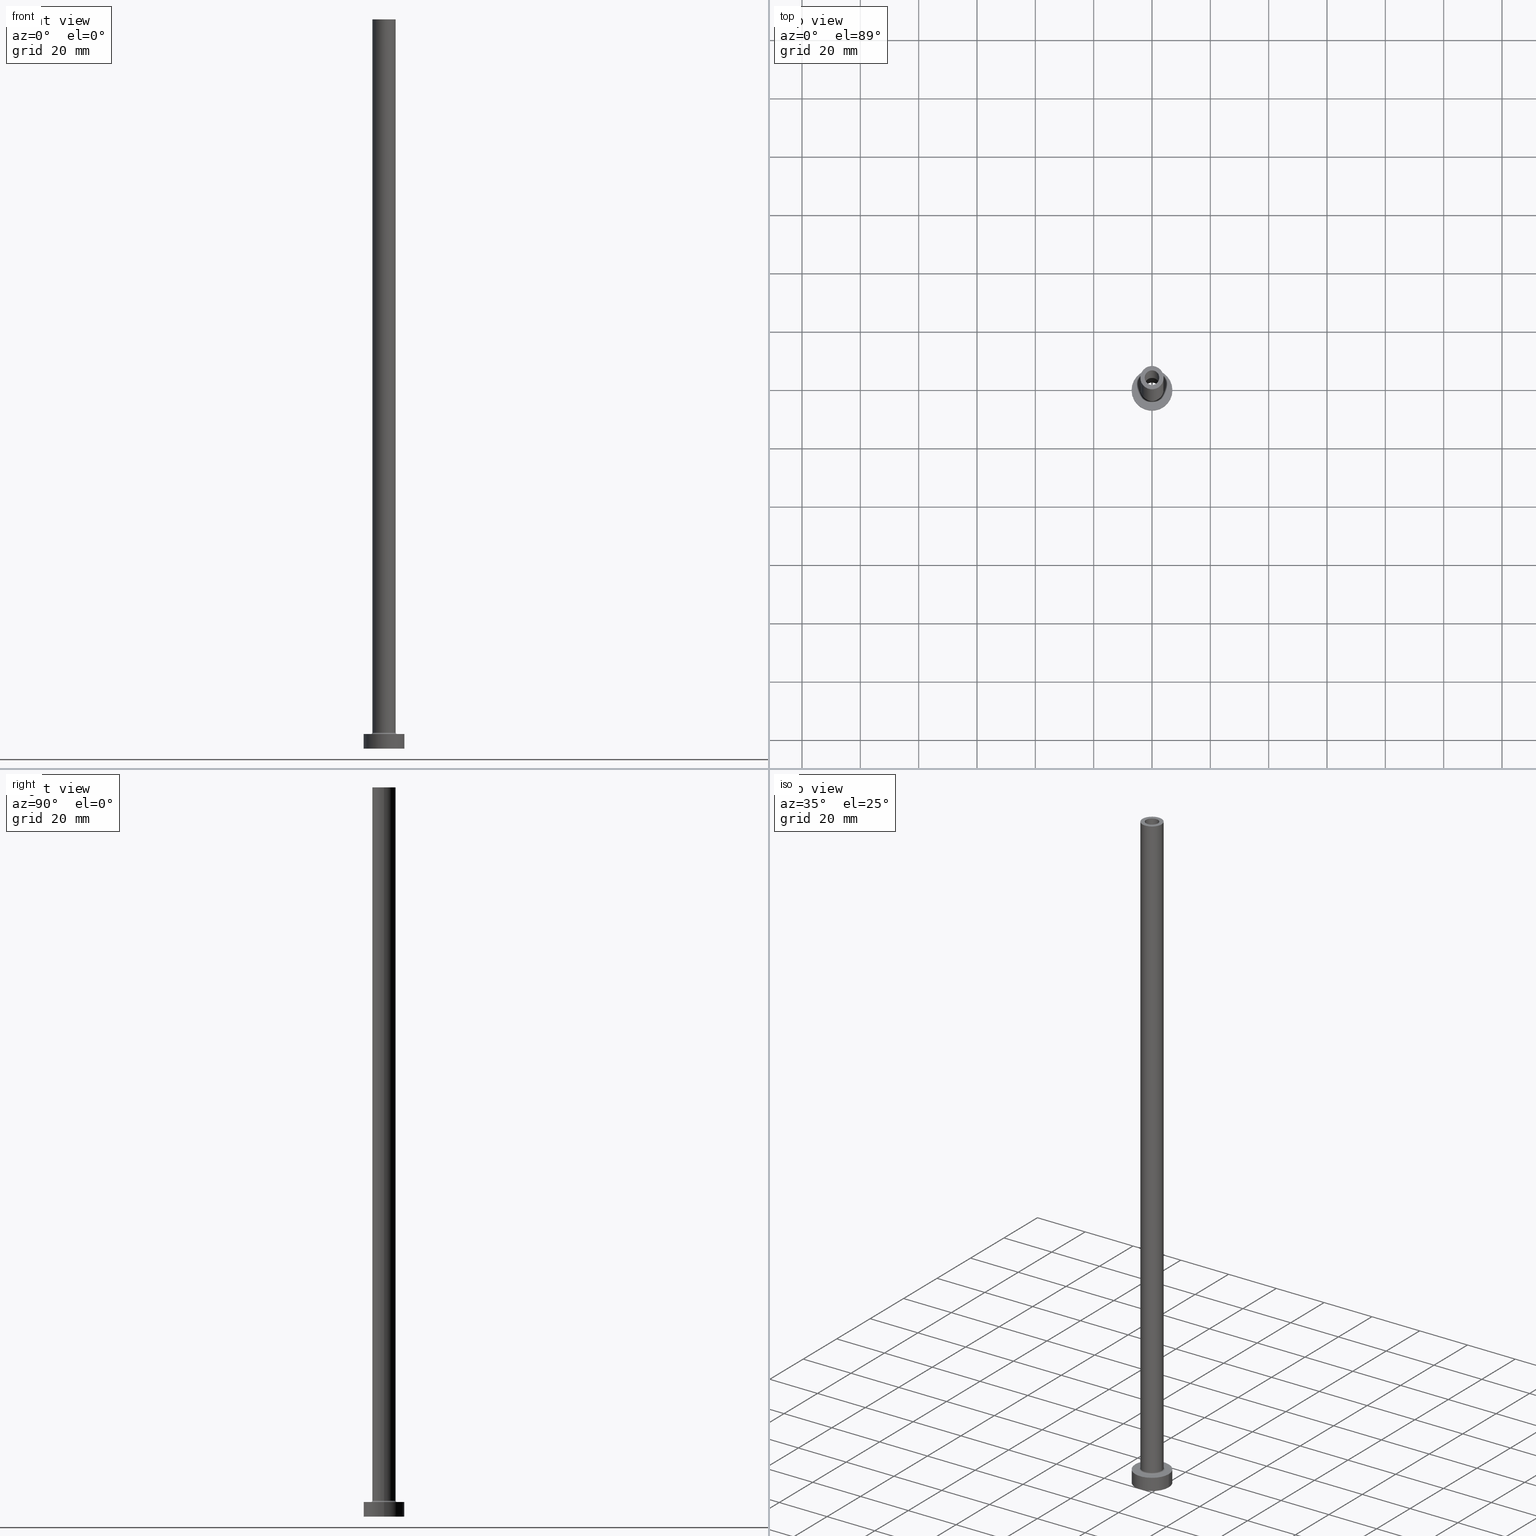
[diagram: canonical four-view strip — front | top / right | iso, engineering-drawing reading convention]
A machine part, canonical four-view strip (front | top / right | iso — engineering-drawing reading convention). The complete STEP part file that produces these views, byte-faithful:
ISO-10303-21;
HEADER;
FILE_DESCRIPTION (( 'STEP AP203' ),
    '1' );
FILE_NAME ('c5e4.STEP',
    '2023-02-13T10:12:48',
    ( '' ),
    ( '' ),
    'SwSTEP 2.0',
    'SolidWorks 2019',
    '' );
FILE_SCHEMA (( 'CONFIG_CONTROL_DESIGN' ));
ENDSEC;

DATA;
#1 = EDGE_LOOP ( 'NONE', ( #268, #424 ) ) ;
#2 = ADVANCED_FACE ( 'NONE', ( #149 ), #365, .F. ) ;
#3 = CYLINDRICAL_SURFACE ( 'NONE', #176, 2.649999999999999911 ) ;
#4 = VERTEX_POINT ( 'NONE', #191 ) ;
#5 = PRODUCT ( 'c5e4', 'c5e4', '', ( #448 ) ) ;
#6 = FACE_BOUND ( 'NONE', #1, .T. ) ;
#7 = VERTEX_POINT ( 'NONE', #298 ) ;
#8 = DIRECTION ( 'NONE',  ( -0.000000000000000000, -0.000000000000000000, -1.000000000000000000 ) ) ;
#9 = AXIS2_PLACEMENT_3D ( 'NONE', #356, #360, #143 ) ;
#10 = FACE_OUTER_BOUND ( 'NONE', #62, .T. ) ;
#11 = ADVANCED_FACE ( 'NONE', ( #431 ), #118, .T. ) ;
#12 = CARTESIAN_POINT ( 'NONE',  ( 0.000000000000000000, 0.000000000000000000, 5.000000000000000000 ) ) ;
#13 = FACE_OUTER_BOUND ( 'NONE', #59, .T. ) ;
#14 = CARTESIAN_POINT ( 'NONE',  ( 0.000000000000000000, 0.000000000000000000, 0.000000000000000000 ) ) ;
#15 = FACE_OUTER_BOUND ( 'NONE', #271, .T. ) ;
#16 = PERSON_AND_ORGANIZATION ( #60, #262 ) ;
#17 = AXIS2_PLACEMENT_3D ( 'NONE', #50, #41, #93 ) ;
#18 = DATE_AND_TIME ( #54, #83 ) ;
#19 = APPROVAL_STATUS ( 'not_yet_approved' ) ;
#20 = LINE ( 'NONE', #212, #416 ) ;
#21 = ORIENTED_EDGE ( 'NONE', *, *, #167, .F. ) ;
#22 = CIRCLE ( 'NONE', #206, 2.500000000000000000 ) ;
#23 = EDGE_CURVE ( 'NONE', #26, #336, #228, .T. ) ;
#24 = EDGE_LOOP ( 'NONE', ( #42, #290 ) ) ;
#25 = ORIENTED_EDGE ( 'NONE', *, *, #227, .T. ) ;
#26 = VERTEX_POINT ( 'NONE', #273 ) ;
#27 = COORDINATED_UNIVERSAL_TIME_OFFSET ( 1, 0, .AHEAD. ) ;
#28 = ADVANCED_FACE ( 'NONE', ( #13 ), #135, .F. ) ;
#29 = DIRECTION ( 'NONE',  ( 1.000000000000000000, 0.000000000000000000, 0.000000000000000000 ) ) ;
#30 = ORIENTED_EDGE ( 'NONE', *, *, #454, .F. ) ;
#31 = DESIGN_CONTEXT ( 'detailed design', #440, 'design' ) ;
#32 = DIRECTION ( 'NONE',  ( -0.000000000000000000, -0.000000000000000000, -1.000000000000000000 ) ) ;
#33 = CC_DESIGN_DATE_AND_TIME_ASSIGNMENT ( #18, #170, ( #139 ) ) ;
#34 = VERTEX_POINT ( 'NONE', #340 ) ;
#35 = CYLINDRICAL_SURFACE ( 'NONE', #164, 2.500000000000000000 ) ;
#36 = DIRECTION ( 'NONE',  ( 0.000000000000000000, 0.000000000000000000, -1.000000000000000000 ) ) ;
#37 = CIRCLE ( 'NONE', #423, 0.5000000000000004441 ) ;
#38 = CARTESIAN_POINT ( 'NONE',  ( -4.000000000000000000, 0.000000000000000000, 250.0000000000000000 ) ) ;
#39 = CARTESIAN_POINT ( 'NONE',  ( 0.000000000000000000, 0.000000000000000000, 5.000000000000000000 ) ) ;
#40 = CARTESIAN_POINT ( 'NONE',  ( 0.000000000000000000, 0.000000000000000000, 250.0000000000000000 ) ) ;
#41 = DIRECTION ( 'NONE',  ( -0.000000000000000000, -0.000000000000000000, -1.000000000000000000 ) ) ;
#42 = ORIENTED_EDGE ( 'NONE', *, *, #429, .T. ) ;
#43 = PRODUCT_DEFINITION_SHAPE ( 'NONE', 'NONE',  #139 ) ;
#44 = CARTESIAN_POINT ( 'NONE',  ( -2.649999999999999911, 0.000000000000000000, 212.4953318805773961 ) ) ;
#45 = CC_DESIGN_APPROVAL ( #409, ( #139 ) ) ;
#46 = CARTESIAN_POINT ( 'NONE',  ( -2.500000000000000000, 0.000000000000000000, 205.0000000000000284 ) ) ;
#47 = CIRCLE ( 'NONE', #330, 4.500000000000000888 ) ;
#48 = DIRECTION ( 'NONE',  ( 0.000000000000000000, 0.000000000000000000, 1.000000000000000000 ) ) ;
#49 = CLOSED_SHELL ( 'NONE', ( #441, #288, #28, #296, #11, #95, #246, #67, #157, #387, #154, #2, #327, #108 ) ) ;
#50 = CARTESIAN_POINT ( 'NONE',  ( 0.000000000000000000, 0.000000000000000000, 5.000000000000000000 ) ) ;
#51 = PERSON_AND_ORGANIZATION_ROLE ( 'design_supplier' ) ;
#52 = DIRECTION ( 'NONE',  ( 0.000000000000000000, -1.000000000000000000, 0.000000000000000000 ) ) ;
#53 = CC_DESIGN_PERSON_AND_ORGANIZATION_ASSIGNMENT ( #408, #379, ( #139 ) ) ;
#54 = CALENDAR_DATE ( 2023, 13, 2 ) ;
#55 = AXIS2_PLACEMENT_3D ( 'NONE', #294, #326, #76 ) ;
#56 = DIRECTION ( 'NONE',  ( 1.000000000000000000, 0.000000000000000000, 0.000000000000000000 ) ) ;
#57 = APPROVAL_STATUS ( 'not_yet_approved' ) ;
#58 = DIRECTION ( 'NONE',  ( 0.000000000000000000, 0.000000000000000000, 1.000000000000000000 ) ) ;
#59 = EDGE_LOOP ( 'NONE', ( #216, #189, #355, #256 ) ) ;
#60 = PERSON ( 'NEUR�EN�', 'NEUR�EN�', 'NEUR�EN�', ('NEUR�EN�'), ('NEUR�EN�'), ('NEUR�EN�') ) ;
#61 = APPLICATION_PROTOCOL_DEFINITION ( 'international standard', 'config_control_design', 1994, #440 ) ;
#62 = EDGE_LOOP ( 'NONE', ( #269, #102 ) ) ;
#63 = LOCAL_TIME ( 11, 12, 48.00000000000000000, #128 ) ;
#64 = AXIS2_PLACEMENT_3D ( 'NONE', #182, #396, #248 ) ;
#65 = VERTEX_POINT ( 'NONE', #304 ) ;
#66 = VERTEX_POINT ( 'NONE', #204 ) ;
#67 = ADVANCED_FACE ( 'NONE', ( #165, #10 ), #240, .F. ) ;
#68 = DATE_TIME_ROLE ( 'classification_date' ) ;
#69 = DIRECTION ( 'NONE',  ( 0.000000000000000000, 0.000000000000000000, 1.000000000000000000 ) ) ;
#70 = VERTEX_POINT ( 'NONE', #160 ) ;
#71 = CC_DESIGN_PERSON_AND_ORGANIZATION_ASSIGNMENT ( #385, #351, ( #270 ) ) ;
#72 = CARTESIAN_POINT ( 'NONE',  ( 2.500000000000000000, 3.061616997868382648E-16, 250.0000000000000000 ) ) ;
#73 = LOCAL_TIME ( 11, 12, 48.00000000000000000, #94 ) ;
#74 = CIRCLE ( 'NONE', #55, 7.000000000000000000 ) ;
#75 = ORIENTED_EDGE ( 'NONE', *, *, #101, .T. ) ;
#76 = DIRECTION ( 'NONE',  ( 1.000000000000000000, 0.000000000000000000, 0.000000000000000000 ) ) ;
#77 = ORIENTED_EDGE ( 'NONE', *, *, #23, .T. ) ;
#78 = DIRECTION ( 'NONE',  ( 0.000000000000000000, 0.000000000000000000, 1.000000000000000000 ) ) ;
#79 = EDGE_CURVE ( 'NONE', #70, #109, #439, .T. ) ;
#80 = ORIENTED_EDGE ( 'NONE', *, *, #210, .T. ) ;
#81 = ORIENTED_EDGE ( 'NONE', *, *, #421, .T. ) ;
#82 = CARTESIAN_POINT ( 'NONE',  ( 0.000000000000000000, 0.000000000000000000, 212.4953318805773961 ) ) ;
#83 = LOCAL_TIME ( 11, 12, 48.00000000000000000, #382 ) ;
#84 = CIRCLE ( 'NONE', #317, 2.649999999999999911 ) ;
#85 = SECURITY_CLASSIFICATION ( '', '', #344 ) ;
#86 = CYLINDRICAL_SURFACE ( 'NONE', #402, 4.000000000000000000 ) ;
#87 = VERTEX_POINT ( 'NONE', #276 ) ;
#88 = DIRECTION ( 'NONE',  ( 0.000000000000000000, 0.000000000000000000, 1.000000000000000000 ) ) ;
#89 = DIRECTION ( 'NONE',  ( 0.000000000000000000, 0.000000000000000000, 1.000000000000000000 ) ) ;
#90 = DIRECTION ( 'NONE',  ( 1.000000000000000000, 0.000000000000000000, 0.000000000000000000 ) ) ;
#91 = APPROVAL_PERSON_ORGANIZATION ( #16, #409, #444 ) ;
#92 = CIRCLE ( 'NONE', #158, 4.500000000000000888 ) ;
#93 = DIRECTION ( 'NONE',  ( -1.000000000000000000, 0.000000000000000000, 0.000000000000000000 ) ) ;
#94 = COORDINATED_UNIVERSAL_TIME_OFFSET ( 1, 0, .AHEAD. ) ;
#95 = ADVANCED_FACE ( 'NONE', ( #15 ), #410, .T. ) ;
#96 = CARTESIAN_POINT ( 'NONE',  ( 4.000000000000000000, 4.898587196589412829E-16, 250.0000000000000000 ) ) ;
#97 = VECTOR ( 'NONE', #155, 1000.000000000000000 ) ;
#98 = CARTESIAN_POINT ( 'NONE',  ( 0.000000000000000000, 0.000000000000000000, 5.500000000000005329 ) ) ;
#99 = EDGE_LOOP ( 'NONE', ( #300, #225 ) ) ;
#100 = DIRECTION ( 'NONE',  ( -1.000000000000000000, 1.224646799147351482E-16, 0.000000000000000000 ) ) ;
#101 = EDGE_CURVE ( 'NONE', #231, #386, #140, .T. ) ;
#102 = ORIENTED_EDGE ( 'NONE', *, *, #388, .F. ) ;
#103 = DATE_AND_TIME ( #138, #401 ) ;
#104 = CIRCLE ( 'NONE', #64, 7.000000000000000000 ) ;
#105 = VERTEX_POINT ( 'NONE', #96 ) ;
#106 = CARTESIAN_POINT ( 'NONE',  ( 0.000000000000000000, 0.000000000000000000, 205.0000000000000284 ) ) ;
#107 = AXIS2_PLACEMENT_3D ( 'NONE', #39, #333, #403 ) ;
#108 = ADVANCED_FACE ( 'NONE', ( #307 ), #446, .F. ) ;
#109 = VERTEX_POINT ( 'NONE', #219 ) ;
#110 = ADVANCED_BREP_SHAPE_REPRESENTATION ( 'c5e4', ( #112, #393 ), #282 ) ;
#111 = DIRECTION ( 'NONE',  ( -0.000000000000000000, -0.000000000000000000, -1.000000000000000000 ) ) ;
#112 = MANIFOLD_SOLID_BREP ( 'Odebrat vysunut�m4', #49 ) ;
#113 = FACE_OUTER_BOUND ( 'NONE', #251, .T. ) ;
#114 = CIRCLE ( 'NONE', #458, 4.000000000000000000 ) ;
#115 = EDGE_CURVE ( 'NONE', #260, #34, #20, .T. ) ;
#116 = DIRECTION ( 'NONE',  ( 1.000000000000000000, 0.000000000000000000, 0.000000000000000000 ) ) ;
#117 = DIRECTION ( 'NONE',  ( -0.000000000000000000, -0.000000000000000000, -1.000000000000000000 ) ) ;
#118 = CYLINDRICAL_SURFACE ( 'NONE', #107, 7.000000000000000000 ) ;
#119 = FACE_BOUND ( 'NONE', #141, .T. ) ;
#120 = CC_DESIGN_APPROVAL ( #433, ( #270 ) ) ;
#121 = CIRCLE ( 'NONE', #199, 7.000000000000000000 ) ;
#122 = DIRECTION ( 'NONE',  ( 1.000000000000000000, 0.000000000000000000, -0.000000000000000000 ) ) ;
#123 = CARTESIAN_POINT ( 'NONE',  ( 0.000000000000000000, 0.000000000000000000, 250.0000000000000000 ) ) ;
#124 = DIRECTION ( 'NONE',  ( 1.000000000000000000, 0.000000000000000000, -0.000000000000000000 ) ) ;
#125 = LINE ( 'NONE', #442, #255 ) ;
#126 = AXIS2_PLACEMENT_3D ( 'NONE', #263, #226, #383 ) ;
#127 = CARTESIAN_POINT ( 'NONE',  ( 0.000000000000000000, 0.000000000000000000, 250.0000000000000000 ) ) ;
#128 = COORDINATED_UNIVERSAL_TIME_OFFSET ( 1, 0, .AHEAD. ) ;
#129 = EDGE_CURVE ( 'NONE', #386, #283, #419, .T. ) ;
#130 = DIRECTION ( 'NONE',  ( -0.000000000000000000, -0.000000000000000000, -1.000000000000000000 ) ) ;
#131 = ORIENTED_EDGE ( 'NONE', *, *, #343, .T. ) ;
#132 = AXIS2_PLACEMENT_3D ( 'NONE', #196, #238, #335 ) ;
#133 = CARTESIAN_POINT ( 'NONE',  ( 0.000000000000000000, 0.000000000000000000, 205.0000000000000284 ) ) ;
#134 = ORIENTED_EDGE ( 'NONE', *, *, #320, .T. ) ;
#135 = TOROIDAL_SURFACE ( 'NONE', #398, 4.500000000000000888, 0.5000000000000000000 ) ;
#136 = EDGE_CURVE ( 'NONE', #34, #26, #114, .T. ) ;
#137 = ORIENTED_EDGE ( 'NONE', *, *, #310, .T. ) ;
#138 = CALENDAR_DATE ( 2023, 13, 2 ) ;
#139 = PRODUCT_DEFINITION ( 'NEZN�M�', '', #270, #31 ) ;
#140 = CIRCLE ( 'NONE', #445, 2.500000000000000000 ) ;
#141 = EDGE_LOOP ( 'NONE', ( #146, #460 ) ) ;
#142 = APPROVAL_DATE_TIME ( #103, #261 ) ;
#143 = DIRECTION ( 'NONE',  ( 1.000000000000000000, 0.000000000000000000, 0.000000000000000000 ) ) ;
#144 = COORDINATED_UNIVERSAL_TIME_OFFSET ( 1, 0, .AHEAD. ) ;
#145 = CARTESIAN_POINT ( 'NONE',  ( 0.000000000000000000, 0.000000000000000000, 5.500000000000005329 ) ) ;
#146 = ORIENTED_EDGE ( 'NONE', *, *, #305, .F. ) ;
#147 = VERTEX_POINT ( 'NONE', #184 ) ;
#148 = DIRECTION ( 'NONE',  ( 1.000000000000000000, 0.000000000000000000, 0.000000000000000000 ) ) ;
#149 = FACE_OUTER_BOUND ( 'NONE', #455, .T. ) ;
#150 = CIRCLE ( 'NONE', #249, 7.000000000000000000 ) ;
#151 = ORIENTED_EDGE ( 'NONE', *, *, #454, .T. ) ;
#152 = DIRECTION ( 'NONE',  ( 0.000000000000000000, 0.000000000000000000, 1.000000000000000000 ) ) ;
#153 = ORIENTED_EDGE ( 'NONE', *, *, #129, .T. ) ;
#154 = ADVANCED_FACE ( 'NONE', ( #427 ), #242, .F. ) ;
#155 = DIRECTION ( 'NONE',  ( 0.000000000000000000, 0.000000000000000000, -1.000000000000000000 ) ) ;
#156 = CARTESIAN_POINT ( 'NONE',  ( 0.000000000000000000, 0.000000000000000000, 205.0000000000000284 ) ) ;
#157 = ADVANCED_FACE ( 'NONE', ( #188 ), #168, .T. ) ;
#158 = AXIS2_PLACEMENT_3D ( 'NONE', #406, #8, #370 ) ;
#159 = DIRECTION ( 'NONE',  ( 1.000000000000000000, 0.000000000000000000, 0.000000000000000000 ) ) ;
#160 = CARTESIAN_POINT ( 'NONE',  ( -7.000000000000000000, 0.000000000000000000, 5.000000000000000000 ) ) ;
#161 = EDGE_CURVE ( 'NONE', #231, #4, #391, .T. ) ;
#162 = APPROVAL_ROLE ( '' ) ;
#163 = CARTESIAN_POINT ( 'NONE',  ( 0.000000000000000000, 0.000000000000000000, 250.0000000000000000 ) ) ;
#164 = AXIS2_PLACEMENT_3D ( 'NONE', #266, #285, #275 ) ;
#165 = FACE_BOUND ( 'NONE', #319, .T. ) ;
#166 = DIRECTION ( 'NONE',  ( -0.000000000000000000, -0.000000000000000000, -1.000000000000000000 ) ) ;
#167 = EDGE_CURVE ( 'NONE', #283, #4, #284, .T. ) ;
#168 = CYLINDRICAL_SURFACE ( 'NONE', #359, 4.000000000000000000 ) ;
#169 = EDGE_LOOP ( 'NONE', ( #289, #187 ) ) ;
#170 = DATE_TIME_ROLE ( 'creation_date' ) ;
#171 = DIRECTION ( 'NONE',  ( 1.000000000000000000, 0.000000000000000000, 0.000000000000000000 ) ) ;
#172 = PRODUCT_RELATED_PRODUCT_CATEGORY ( 'detail', '', ( #5 ) ) ;
#173 = EDGE_LOOP ( 'NONE', ( #177, #134, #331, #367 ) ) ;
#174 = DIRECTION ( 'NONE',  ( 1.000000000000000000, 0.000000000000000000, 0.000000000000000000 ) ) ;
#175 = LOCAL_TIME ( 11, 12, 48.00000000000000000, #144 ) ;
#176 = AXIS2_PLACEMENT_3D ( 'NONE', #82, #301, #332 ) ;
#177 = ORIENTED_EDGE ( 'NONE', *, *, #193, .T. ) ;
#178 = ORIENTED_EDGE ( 'NONE', *, *, #161, .F. ) ;
#179 = EDGE_CURVE ( 'NONE', #87, #147, #84, .T. ) ;
#180 = ORIENTED_EDGE ( 'NONE', *, *, #320, .F. ) ;
#181 = APPROVAL_STATUS ( 'not_yet_approved' ) ;
#182 = CARTESIAN_POINT ( 'NONE',  ( 0.000000000000000000, 0.000000000000000000, 0.000000000000000000 ) ) ;
#183 = VECTOR ( 'NONE', #197, 1000.000000000000000 ) ;
#184 = CARTESIAN_POINT ( 'NONE',  ( -2.649999999999999911, 0.000000000000000000, 205.0000000000000284 ) ) ;
#185 = APPLICATION_CONTEXT ( 'configuration controlled 3d designs of mechanical parts and assemblies' ) ;
#186 = EDGE_CURVE ( 'NONE', #70, #217, #74, .T. ) ;
#187 = ORIENTED_EDGE ( 'NONE', *, *, #230, .T. ) ;
#188 = FACE_OUTER_BOUND ( 'NONE', #422, .T. ) ;
#189 = ORIENTED_EDGE ( 'NONE', *, *, #459, .T. ) ;
#190 = DIRECTION ( 'NONE',  ( -0.000000000000000000, -0.000000000000000000, -1.000000000000000000 ) ) ;
#191 = CARTESIAN_POINT ( 'NONE',  ( 2.500000000000000000, 3.061616997868382648E-16, 205.0000000000000284 ) ) ;
#192 = AXIS2_PLACEMENT_3D ( 'NONE', #145, #425, #390 ) ;
#193 = EDGE_CURVE ( 'NONE', #147, #87, #452, .T. ) ;
#194 = PLANE ( 'NONE',  #277 ) ;
#195 = ORIENTED_EDGE ( 'NONE', *, *, #267, .F. ) ;
#196 = CARTESIAN_POINT ( 'NONE',  ( 0.000000000000000000, 0.000000000000000000, 5.500000000000005329 ) ) ;
#197 = DIRECTION ( 'NONE',  ( 0.000000000000000000, 0.000000000000000000, -1.000000000000000000 ) ) ;
#198 = DIRECTION ( 'NONE',  ( 0.000000000000000000, 0.000000000000000000, 1.000000000000000000 ) ) ;
#199 = AXIS2_PLACEMENT_3D ( 'NONE', #239, #371, #200 ) ;
#200 = DIRECTION ( 'NONE',  ( 1.000000000000000000, 0.000000000000000000, 0.000000000000000000 ) ) ;
#201 = CARTESIAN_POINT ( 'NONE',  ( 4.500000000000000888, 0.000000000000000000, 5.500000000000005329 ) ) ;
#202 = EDGE_CURVE ( 'NONE', #105, #26, #312, .T. ) ;
#203 = DIRECTION ( 'NONE',  ( 1.224646799147353207E-16, 1.000000000000000000, -0.000000000000000000 ) ) ;
#204 = CARTESIAN_POINT ( 'NONE',  ( 7.000000000000000000, 8.572527594031473190E-16, 0.000000000000000000 ) ) ;
#205 = CC_DESIGN_APPROVAL ( #261, ( #85 ) ) ;
#206 = AXIS2_PLACEMENT_3D ( 'NONE', #40, #88, #368 ) ;
#207 = AXIS2_PLACEMENT_3D ( 'NONE', #451, #48, #209 ) ;
#208 = PLANE ( 'NONE',  #126 ) ;
#209 = DIRECTION ( 'NONE',  ( 1.000000000000000000, 0.000000000000000000, 0.000000000000000000 ) ) ;
#210 = EDGE_CURVE ( 'NONE', #7, #65, #345, .T. ) ;
#211 = AXIS2_PLACEMENT_3D ( 'NONE', #443, #342, #124 ) ;
#212 = CARTESIAN_POINT ( 'NONE',  ( -4.000000000000000000, 0.000000000000000000, 250.0000000000000000 ) ) ;
#213 = VERTEX_POINT ( 'NONE', #259 ) ;
#214 = APPLICATION_PROTOCOL_DEFINITION ( 'international standard', 'config_control_design', 1994, #185 ) ;
#215 = AXIS2_PLACEMENT_3D ( 'NONE', #399, #78, #229 ) ;
#216 = ORIENTED_EDGE ( 'NONE', *, *, #136, .F. ) ;
#217 = VERTEX_POINT ( 'NONE', #324 ) ;
#218 = PERSON_AND_ORGANIZATION_ROLE ( 'classification_officer' ) ;
#219 = CARTESIAN_POINT ( 'NONE',  ( -7.000000000000000000, 0.000000000000000000, 0.000000000000000000 ) ) ;
#220 = ORIENTED_EDGE ( 'NONE', *, *, #421, .F. ) ;
#221 = CALENDAR_DATE ( 2023, 13, 2 ) ;
#222 = DIRECTION ( 'NONE',  ( 0.000000000000000000, 0.000000000000000000, -1.000000000000000000 ) ) ;
#223 = CIRCLE ( 'NONE', #322, 2.649999999999999911 ) ;
#224 = ORIENTED_EDGE ( 'NONE', *, *, #210, .F. ) ;
#225 = ORIENTED_EDGE ( 'NONE', *, *, #179, .F. ) ;
#226 = DIRECTION ( 'NONE',  ( 0.000000000000000000, 0.000000000000000000, 1.000000000000000000 ) ) ;
#227 = EDGE_CURVE ( 'NONE', #109, #66, #104, .T. ) ;
#228 = CIRCLE ( 'NONE', #348, 0.5000000000000004441 ) ;
#229 = DIRECTION ( 'NONE',  ( 1.000000000000000000, 0.000000000000000000, 0.000000000000000000 ) ) ;
#230 = EDGE_CURVE ( 'NONE', #213, #336, #47, .T. ) ;
#231 = VERTEX_POINT ( 'NONE', #293 ) ;
#232 = FACE_OUTER_BOUND ( 'NONE', #173, .T. ) ;
#233 = CIRCLE ( 'NONE', #207, 2.500000000000000000 ) ;
#234 = CC_DESIGN_PERSON_AND_ORGANIZATION_ASSIGNMENT ( #243, #349, ( #5 ) ) ;
#235 = EDGE_LOOP ( 'NONE', ( #417, #397, #21, #328 ) ) ;
#236 = CARTESIAN_POINT ( 'NONE',  ( 0.000000000000000000, 0.000000000000000000, 250.0000000000000000 ) ) ;
#237 = ORIENTED_EDGE ( 'NONE', *, *, #377, .F. ) ;
#238 = DIRECTION ( 'NONE',  ( 0.000000000000000000, 0.000000000000000000, 1.000000000000000000 ) ) ;
#239 = CARTESIAN_POINT ( 'NONE',  ( 0.000000000000000000, 0.000000000000000000, 0.000000000000000000 ) ) ;
#240 = PLANE ( 'NONE',  #211 ) ;
#241 = APPROVAL_PERSON_ORGANIZATION ( #318, #261, #358 ) ;
#242 = TOROIDAL_SURFACE ( 'NONE', #192, 4.500000000000000888, 0.5000000000000000000 ) ;
#243 = PERSON_AND_ORGANIZATION ( #60, #262 ) ;
#244 = AXIS2_PLACEMENT_3D ( 'NONE', #362, #36, #434 ) ;
#245 = APPROVAL_DATE_TIME ( #252, #433 ) ;
#246 = ADVANCED_FACE ( 'NONE', ( #250, #113 ), #208, .T. ) ;
#247 = DIRECTION ( 'NONE',  ( 0.000000000000000000, 0.000000000000000000, -1.000000000000000000 ) ) ;
#248 = DIRECTION ( 'NONE',  ( 1.000000000000000000, 0.000000000000000000, 0.000000000000000000 ) ) ;
#249 = AXIS2_PLACEMENT_3D ( 'NONE', #12, #306, #116 ) ;
#250 = FACE_BOUND ( 'NONE', #169, .T. ) ;
#251 = EDGE_LOOP ( 'NONE', ( #357, #81 ) ) ;
#252 = DATE_AND_TIME ( #314, #73 ) ;
#253 = ORIENTED_EDGE ( 'NONE', *, *, #136, .T. ) ;
#254 = CC_DESIGN_PERSON_AND_ORGANIZATION_ASSIGNMENT ( #447, #218, ( #85 ) ) ;
#255 = VECTOR ( 'NONE', #166, 1000.000000000000000 ) ;
#256 = ORIENTED_EDGE ( 'NONE', *, *, #23, .F. ) ;
#257 = SHAPE_DEFINITION_REPRESENTATION ( #43, #110 ) ;
#258 = CARTESIAN_POINT ( 'NONE',  ( 0.000000000000000000, 0.000000000000000000, 250.0000000000000000 ) ) ;
#259 = CARTESIAN_POINT ( 'NONE',  ( -4.500000000000000888, 5.510910596163088569E-16, 5.000000000000002665 ) ) ;
#260 = VERTEX_POINT ( 'NONE', #38 ) ;
#261 = APPROVAL ( #181, 'NEUR�EN�' ) ;
#262 = ORGANIZATION ( 'NEUR�EN�', 'NEUR�EN�', '' ) ;
#263 = CARTESIAN_POINT ( 'NONE',  ( 0.000000000000000000, 0.000000000000000000, 5.000000000000000000 ) ) ;
#264 = AXIS2_PLACEMENT_3D ( 'NONE', #127, #247, #369 ) ;
#265 = DIRECTION ( 'NONE',  ( 1.000000000000000000, 0.000000000000000000, -0.000000000000000000 ) ) ;
#266 = CARTESIAN_POINT ( 'NONE',  ( 0.000000000000000000, 0.000000000000000000, 250.0000000000000000 ) ) ;
#267 = EDGE_CURVE ( 'NONE', #105, #260, #381, .T. ) ;
#268 = ORIENTED_EDGE ( 'NONE', *, *, #167, .T. ) ;
#269 = ORIENTED_EDGE ( 'NONE', *, *, #227, .F. ) ;
#270 = PRODUCT_DEFINITION_FORMATION_WITH_SPECIFIED_SOURCE ( 'LIBOVOLN�', '', #5, .NOT_KNOWN. ) ;
#271 = EDGE_LOOP ( 'NONE', ( #30, #394, #384, #25 ) ) ;
#272 = CARTESIAN_POINT ( 'NONE',  ( 4.500000000000000888, 0.000000000000000000, 5.000000000000002665 ) ) ;
#273 = CARTESIAN_POINT ( 'NONE',  ( 4.000000000000000000, 4.898587196589412829E-16, 5.500000000000005329 ) ) ;
#274 = FACE_OUTER_BOUND ( 'NONE', #354, .T. ) ;
#275 = DIRECTION ( 'NONE',  ( -1.000000000000000000, 0.000000000000000000, 0.000000000000000000 ) ) ;
#276 = CARTESIAN_POINT ( 'NONE',  ( 2.649999999999999911, 3.245314017740485962E-16, 205.0000000000000284 ) ) ;
#277 = AXIS2_PLACEMENT_3D ( 'NONE', #156, #436, #122 ) ;
#278 =( NAMED_UNIT ( * ) SI_UNIT ( $, .STERADIAN. ) SOLID_ANGLE_UNIT ( ) );
#279 = DIRECTION ( 'NONE',  ( 0.000000000000000000, 0.000000000000000000, -1.000000000000000000 ) ) ;
#280 = DIRECTION ( 'NONE',  ( 0.000000000000000000, 0.000000000000000000, 1.000000000000000000 ) ) ;
#281 = CARTESIAN_POINT ( 'NONE',  ( 0.000000000000000000, 0.000000000000000000, 0.000000000000000000 ) ) ;
#282 =( GEOMETRIC_REPRESENTATION_CONTEXT ( 3 ) GLOBAL_UNCERTAINTY_ASSIGNED_CONTEXT ( ( #426 ) ) GLOBAL_UNIT_ASSIGNED_CONTEXT ( ( #412, #411, #278 ) ) REPRESENTATION_CONTEXT ( 'NONE', 'WORKASPACE' ) );
#283 = VERTEX_POINT ( 'NONE', #46 ) ;
#284 = CIRCLE ( 'NONE', #9, 2.500000000000000000 ) ;
#285 = DIRECTION ( 'NONE',  ( 0.000000000000000000, 0.000000000000000000, -1.000000000000000000 ) ) ;
#286 = CARTESIAN_POINT ( 'NONE',  ( -2.500000000000000000, 0.000000000000000000, 250.0000000000000000 ) ) ;
#287 = ORIENTED_EDGE ( 'NONE', *, *, #388, .T. ) ;
#288 = ADVANCED_FACE ( 'NONE', ( #232 ), #3, .F. ) ;
#289 = ORIENTED_EDGE ( 'NONE', *, *, #338, .T. ) ;
#290 = ORIENTED_EDGE ( 'NONE', *, *, #267, .T. ) ;
#291 = DIRECTION ( 'NONE',  ( 1.000000000000000000, 0.000000000000000000, 0.000000000000000000 ) ) ;
#292 = CC_DESIGN_PERSON_AND_ORGANIZATION_ASSIGNMENT ( #378, #51, ( #270 ) ) ;
#293 = CARTESIAN_POINT ( 'NONE',  ( 2.500000000000000000, 3.061616997868382648E-16, 250.0000000000000000 ) ) ;
#294 = CARTESIAN_POINT ( 'NONE',  ( 0.000000000000000000, 0.000000000000000000, 5.000000000000000000 ) ) ;
#295 = AXIS2_PLACEMENT_3D ( 'NONE', #236, #152, #404 ) ;
#296 = ADVANCED_FACE ( 'NONE', ( #274 ), #86, .T. ) ;
#297 = CARTESIAN_POINT ( 'NONE',  ( -2.500000000000000000, 0.000000000000000000, 250.0000000000000000 ) ) ;
#298 = CARTESIAN_POINT ( 'NONE',  ( -2.649999999999999911, 0.000000000000000000, 0.000000000000000000 ) ) ;
#299 = FACE_OUTER_BOUND ( 'NONE', #99, .T. ) ;
#300 = ORIENTED_EDGE ( 'NONE', *, *, #193, .F. ) ;
#301 = DIRECTION ( 'NONE',  ( 0.000000000000000000, 0.000000000000000000, -1.000000000000000000 ) ) ;
#302 = VECTOR ( 'NONE', #315, 1000.000000000000000 ) ;
#303 = FACE_OUTER_BOUND ( 'NONE', #24, .T. ) ;
#304 = CARTESIAN_POINT ( 'NONE',  ( 2.649999999999999911, 3.245314017740485962E-16, 0.000000000000000000 ) ) ;
#305 = EDGE_CURVE ( 'NONE', #386, #231, #22, .T. ) ;
#306 = DIRECTION ( 'NONE',  ( 0.000000000000000000, 0.000000000000000000, 1.000000000000000000 ) ) ;
#307 = FACE_OUTER_BOUND ( 'NONE', #361, .T. ) ;
#308 = AXIS2_PLACEMENT_3D ( 'NONE', #133, #69, #29 ) ;
#309 = CALENDAR_DATE ( 2023, 13, 2 ) ;
#310 = EDGE_CURVE ( 'NONE', #26, #34, #339, .T. ) ;
#311 = CARTESIAN_POINT ( 'NONE',  ( -4.500000000000000888, 5.510910596163089556E-16, 5.500000000000005329 ) ) ;
#312 = LINE ( 'NONE', #449, #373 ) ;
#313 = ORIENTED_EDGE ( 'NONE', *, *, #459, .F. ) ;
#314 = CALENDAR_DATE ( 2023, 13, 2 ) ;
#315 = DIRECTION ( 'NONE',  ( 0.000000000000000000, 0.000000000000000000, -1.000000000000000000 ) ) ;
#316 = ORIENTED_EDGE ( 'NONE', *, *, #202, .T. ) ;
#317 = AXIS2_PLACEMENT_3D ( 'NONE', #106, #58, #148 ) ;
#318 = PERSON_AND_ORGANIZATION ( #60, #262 ) ;
#319 = EDGE_LOOP ( 'NONE', ( #224, #237 ) ) ;
#320 = EDGE_CURVE ( 'NONE', #87, #65, #329, .T. ) ;
#321 = ORIENTED_EDGE ( 'NONE', *, *, #310, .F. ) ;
#322 = AXIS2_PLACEMENT_3D ( 'NONE', #432, #117, #159 ) ;
#323 = DIRECTION ( 'NONE',  ( -0.000000000000000000, -0.000000000000000000, -1.000000000000000000 ) ) ;
#324 = CARTESIAN_POINT ( 'NONE',  ( 7.000000000000000000, 8.572527594031473190E-16, 5.000000000000000000 ) ) ;
#325 = EDGE_LOOP ( 'NONE', ( #313, #321, #77, #363 ) ) ;
#326 = DIRECTION ( 'NONE',  ( 0.000000000000000000, 0.000000000000000000, 1.000000000000000000 ) ) ;
#327 = ADVANCED_FACE ( 'NONE', ( #6, #299 ), #194, .F. ) ;
#328 = ORIENTED_EDGE ( 'NONE', *, *, #129, .F. ) ;
#329 = LINE ( 'NONE', #430, #97 ) ;
#330 = AXIS2_PLACEMENT_3D ( 'NONE', #415, #32, #56 ) ;
#331 = ORIENTED_EDGE ( 'NONE', *, *, #377, .T. ) ;
#332 = DIRECTION ( 'NONE',  ( -1.000000000000000000, 0.000000000000000000, 0.000000000000000000 ) ) ;
#333 = DIRECTION ( 'NONE',  ( -0.000000000000000000, -0.000000000000000000, -1.000000000000000000 ) ) ;
#334 = ORIENTED_EDGE ( 'NONE', *, *, #115, .T. ) ;
#335 = DIRECTION ( 'NONE',  ( 1.000000000000000000, 0.000000000000000000, 0.000000000000000000 ) ) ;
#336 = VERTEX_POINT ( 'NONE', #272 ) ;
#337 = DIRECTION ( 'NONE',  ( -1.000000000000000000, 0.000000000000000000, 0.000000000000000000 ) ) ;
#338 = EDGE_CURVE ( 'NONE', #336, #213, #92, .T. ) ;
#339 = CIRCLE ( 'NONE', #132, 4.000000000000000000 ) ;
#340 = CARTESIAN_POINT ( 'NONE',  ( -4.000000000000000000, 0.000000000000000000, 5.500000000000005329 ) ) ;
#341 = CARTESIAN_POINT ( 'NONE',  ( 0.000000000000000000, 0.000000000000000000, 250.0000000000000000 ) ) ;
#342 = DIRECTION ( 'NONE',  ( 0.000000000000000000, 0.000000000000000000, 1.000000000000000000 ) ) ;
#343 = EDGE_CURVE ( 'NONE', #147, #7, #400, .T. ) ;
#344 = SECURITY_CLASSIFICATION_LEVEL ( 'unclassified' ) ;
#345 = CIRCLE ( 'NONE', #395, 2.649999999999999911 ) ;
#346 = APPROVAL_DATE_TIME ( #414, #409 ) ;
#347 = DIRECTION ( 'NONE',  ( 0.000000000000000000, 0.000000000000000000, 1.000000000000000000 ) ) ;
#348 = AXIS2_PLACEMENT_3D ( 'NONE', #201, #52, #279 ) ;
#349 = PERSON_AND_ORGANIZATION_ROLE ( 'design_owner' ) ;
#350 = ORIENTED_EDGE ( 'NONE', *, *, #429, .F. ) ;
#351 = PERSON_AND_ORGANIZATION_ROLE ( 'creator' ) ;
#352 = EDGE_LOOP ( 'NONE', ( #220, #151, #287, #453 ) ) ;
#353 = CIRCLE ( 'NONE', #215, 4.000000000000000000 ) ;
#354 = EDGE_LOOP ( 'NONE', ( #195, #316, #137, #450 ) ) ;
#355 = ORIENTED_EDGE ( 'NONE', *, *, #338, .F. ) ;
#356 = CARTESIAN_POINT ( 'NONE',  ( 0.000000000000000000, 0.000000000000000000, 205.0000000000000284 ) ) ;
#357 = ORIENTED_EDGE ( 'NONE', *, *, #186, .T. ) ;
#358 = APPROVAL_ROLE ( '' ) ;
#359 = AXIS2_PLACEMENT_3D ( 'NONE', #258, #111, #380 ) ;
#360 = DIRECTION ( 'NONE',  ( 0.000000000000000000, 0.000000000000000000, 1.000000000000000000 ) ) ;
#361 = EDGE_LOOP ( 'NONE', ( #178, #75, #153, #389 ) ) ;
#362 = CARTESIAN_POINT ( 'NONE',  ( 0.000000000000000000, 0.000000000000000000, 212.4953318805773961 ) ) ;
#363 = ORIENTED_EDGE ( 'NONE', *, *, #230, .F. ) ;
#364 = FACE_OUTER_BOUND ( 'NONE', #235, .T. ) ;
#365 = CYLINDRICAL_SURFACE ( 'NONE', #244, 2.649999999999999911 ) ;
#366 = AXIS2_PLACEMENT_3D ( 'NONE', #341, #89, #265 ) ;
#367 = ORIENTED_EDGE ( 'NONE', *, *, #343, .F. ) ;
#368 = DIRECTION ( 'NONE',  ( 1.000000000000000000, 0.000000000000000000, 0.000000000000000000 ) ) ;
#369 = DIRECTION ( 'NONE',  ( -1.000000000000000000, 0.000000000000000000, 0.000000000000000000 ) ) ;
#370 = DIRECTION ( 'NONE',  ( 1.000000000000000000, 0.000000000000000000, 0.000000000000000000 ) ) ;
#371 = DIRECTION ( 'NONE',  ( 0.000000000000000000, 0.000000000000000000, 1.000000000000000000 ) ) ;
#372 = APPROVAL_PERSON_ORGANIZATION ( #375, #433, #162 ) ;
#373 = VECTOR ( 'NONE', #130, 1000.000000000000000 ) ;
#374 = DIRECTION ( 'NONE',  ( -0.000000000000000000, -0.000000000000000000, -1.000000000000000000 ) ) ;
#375 = PERSON_AND_ORGANIZATION ( #60, #262 ) ;
#376 = DIRECTION ( 'NONE',  ( 0.000000000000000000, 0.000000000000000000, 1.000000000000000000 ) ) ;
#377 = EDGE_CURVE ( 'NONE', #65, #7, #223, .T. ) ;
#378 = PERSON_AND_ORGANIZATION ( #60, #262 ) ;
#379 = PERSON_AND_ORGANIZATION_ROLE ( 'creator' ) ;
#380 = DIRECTION ( 'NONE',  ( -1.000000000000000000, 0.000000000000000000, 0.000000000000000000 ) ) ;
#381 = CIRCLE ( 'NONE', #295, 4.000000000000000000 ) ;
#382 = COORDINATED_UNIVERSAL_TIME_OFFSET ( 1, 0, .AHEAD. ) ;
#383 = DIRECTION ( 'NONE',  ( 1.000000000000000000, 0.000000000000000000, -0.000000000000000000 ) ) ;
#384 = ORIENTED_EDGE ( 'NONE', *, *, #79, .T. ) ;
#385 = PERSON_AND_ORGANIZATION ( #60, #262 ) ;
#386 = VERTEX_POINT ( 'NONE', #297 ) ;
#387 = ADVANCED_FACE ( 'NONE', ( #119, #303 ), #438, .T. ) ;
#388 = EDGE_CURVE ( 'NONE', #66, #109, #121, .T. ) ;
#389 = ORIENTED_EDGE ( 'NONE', *, *, #461, .F. ) ;
#390 = DIRECTION ( 'NONE',  ( 1.000000000000000000, 0.000000000000000000, 0.000000000000000000 ) ) ;
#391 = LINE ( 'NONE', #72, #302 ) ;
#392 = VECTOR ( 'NONE', #374, 1000.000000000000000 ) ;
#393 = AXIS2_PLACEMENT_3D ( 'NONE', #14, #280, #174 ) ;
#394 = ORIENTED_EDGE ( 'NONE', *, *, #186, .F. ) ;
#395 = AXIS2_PLACEMENT_3D ( 'NONE', #281, #428, #291 ) ;
#396 = DIRECTION ( 'NONE',  ( 0.000000000000000000, 0.000000000000000000, 1.000000000000000000 ) ) ;
#397 = ORIENTED_EDGE ( 'NONE', *, *, #161, .T. ) ;
#398 = AXIS2_PLACEMENT_3D ( 'NONE', #405, #198, #90 ) ;
#399 = CARTESIAN_POINT ( 'NONE',  ( 0.000000000000000000, 0.000000000000000000, 250.0000000000000000 ) ) ;
#400 = LINE ( 'NONE', #44, #183 ) ;
#401 = LOCAL_TIME ( 11, 12, 48.00000000000000000, #27 ) ;
#402 = AXIS2_PLACEMENT_3D ( 'NONE', #123, #190, #337 ) ;
#403 = DIRECTION ( 'NONE',  ( -1.000000000000000000, 0.000000000000000000, 0.000000000000000000 ) ) ;
#404 = DIRECTION ( 'NONE',  ( 1.000000000000000000, 0.000000000000000000, 0.000000000000000000 ) ) ;
#405 = CARTESIAN_POINT ( 'NONE',  ( 0.000000000000000000, 0.000000000000000000, 5.500000000000005329 ) ) ;
#406 = CARTESIAN_POINT ( 'NONE',  ( 0.000000000000000000, 0.000000000000000000, 5.000000000000000000 ) ) ;
#407 = CARTESIAN_POINT ( 'NONE',  ( -7.000000000000000000, 0.000000000000000000, 5.000000000000000000 ) ) ;
#408 = PERSON_AND_ORGANIZATION ( #60, #262 ) ;
#409 = APPROVAL ( #19, 'NEUR�EN�' ) ;
#410 = CYLINDRICAL_SURFACE ( 'NONE', #17, 7.000000000000000000 ) ;
#411 =( NAMED_UNIT ( * ) PLANE_ANGLE_UNIT ( ) SI_UNIT ( $, .RADIAN. ) );
#412 =( LENGTH_UNIT ( ) NAMED_UNIT ( * ) SI_UNIT ( .MILLI., .METRE. ) );
#413 = DIRECTION ( 'NONE',  ( 1.000000000000000000, 0.000000000000000000, 0.000000000000000000 ) ) ;
#414 = DATE_AND_TIME ( #309, #63 ) ;
#415 = CARTESIAN_POINT ( 'NONE',  ( 0.000000000000000000, 0.000000000000000000, 5.000000000000000000 ) ) ;
#416 = VECTOR ( 'NONE', #323, 1000.000000000000000 ) ;
#417 = ORIENTED_EDGE ( 'NONE', *, *, #305, .T. ) ;
#418 = CC_DESIGN_DATE_AND_TIME_ASSIGNMENT ( #456, #68, ( #85 ) ) ;
#419 = LINE ( 'NONE', #286, #437 ) ;
#420 = ORIENTED_EDGE ( 'NONE', *, *, #202, .F. ) ;
#421 = EDGE_CURVE ( 'NONE', #217, #70, #150, .T. ) ;
#422 = EDGE_LOOP ( 'NONE', ( #420, #350, #334, #253 ) ) ;
#423 = AXIS2_PLACEMENT_3D ( 'NONE', #311, #203, #100 ) ;
#424 = ORIENTED_EDGE ( 'NONE', *, *, #461, .T. ) ;
#425 = DIRECTION ( 'NONE',  ( 0.000000000000000000, 0.000000000000000000, 1.000000000000000000 ) ) ;
#426 = UNCERTAINTY_MEASURE_WITH_UNIT (LENGTH_MEASURE( 1.000000000000000082E-05 ), #412, 'distance_accuracy_value', 'NONE');
#427 = FACE_OUTER_BOUND ( 'NONE', #325, .T. ) ;
#428 = DIRECTION ( 'NONE',  ( -0.000000000000000000, -0.000000000000000000, -1.000000000000000000 ) ) ;
#429 = EDGE_CURVE ( 'NONE', #260, #105, #353, .T. ) ;
#430 = CARTESIAN_POINT ( 'NONE',  ( 2.649999999999999911, 3.245314017740485962E-16, 212.4953318805773961 ) ) ;
#431 = FACE_OUTER_BOUND ( 'NONE', #352, .T. ) ;
#432 = CARTESIAN_POINT ( 'NONE',  ( 0.000000000000000000, 0.000000000000000000, 0.000000000000000000 ) ) ;
#433 = APPROVAL ( #57, 'NEUR�EN�' ) ;
#434 = DIRECTION ( 'NONE',  ( -1.000000000000000000, 0.000000000000000000, 0.000000000000000000 ) ) ;
#435 = CC_DESIGN_SECURITY_CLASSIFICATION ( #85, ( #270 ) ) ;
#436 = DIRECTION ( 'NONE',  ( 0.000000000000000000, 0.000000000000000000, 1.000000000000000000 ) ) ;
#437 = VECTOR ( 'NONE', #222, 1000.000000000000000 ) ;
#438 = PLANE ( 'NONE',  #366 ) ;
#439 = LINE ( 'NONE', #407, #392 ) ;
#440 = APPLICATION_CONTEXT ( 'configuration controlled 3d designs of mechanical parts and assemblies' ) ;
#441 = ADVANCED_FACE ( 'NONE', ( #364 ), #35, .F. ) ;
#442 = CARTESIAN_POINT ( 'NONE',  ( 7.000000000000000000, 8.572527594031473190E-16, 5.000000000000000000 ) ) ;
#443 = CARTESIAN_POINT ( 'NONE',  ( 0.000000000000000000, 0.000000000000000000, 0.000000000000000000 ) ) ;
#444 = APPROVAL_ROLE ( '' ) ;
#445 = AXIS2_PLACEMENT_3D ( 'NONE', #163, #376, #413 ) ;
#446 = CYLINDRICAL_SURFACE ( 'NONE', #264, 2.500000000000000000 ) ;
#447 = PERSON_AND_ORGANIZATION ( #60, #262 ) ;
#448 = MECHANICAL_CONTEXT ( 'NONE', #185, 'mechanical' ) ;
#449 = CARTESIAN_POINT ( 'NONE',  ( 4.000000000000000000, 4.898587196589412829E-16, 250.0000000000000000 ) ) ;
#450 = ORIENTED_EDGE ( 'NONE', *, *, #115, .F. ) ;
#451 = CARTESIAN_POINT ( 'NONE',  ( 0.000000000000000000, 0.000000000000000000, 205.0000000000000284 ) ) ;
#452 = CIRCLE ( 'NONE', #308, 2.649999999999999911 ) ;
#453 = ORIENTED_EDGE ( 'NONE', *, *, #79, .F. ) ;
#454 = EDGE_CURVE ( 'NONE', #217, #66, #125, .T. ) ;
#455 = EDGE_LOOP ( 'NONE', ( #180, #457, #131, #80 ) ) ;
#456 = DATE_AND_TIME ( #221, #175 ) ;
#457 = ORIENTED_EDGE ( 'NONE', *, *, #179, .T. ) ;
#458 = AXIS2_PLACEMENT_3D ( 'NONE', #98, #347, #171 ) ;
#459 = EDGE_CURVE ( 'NONE', #34, #213, #37, .T. ) ;
#460 = ORIENTED_EDGE ( 'NONE', *, *, #101, .F. ) ;
#461 = EDGE_CURVE ( 'NONE', #4, #283, #233, .T. ) ;
ENDSEC;
END-ISO-10303-21;
